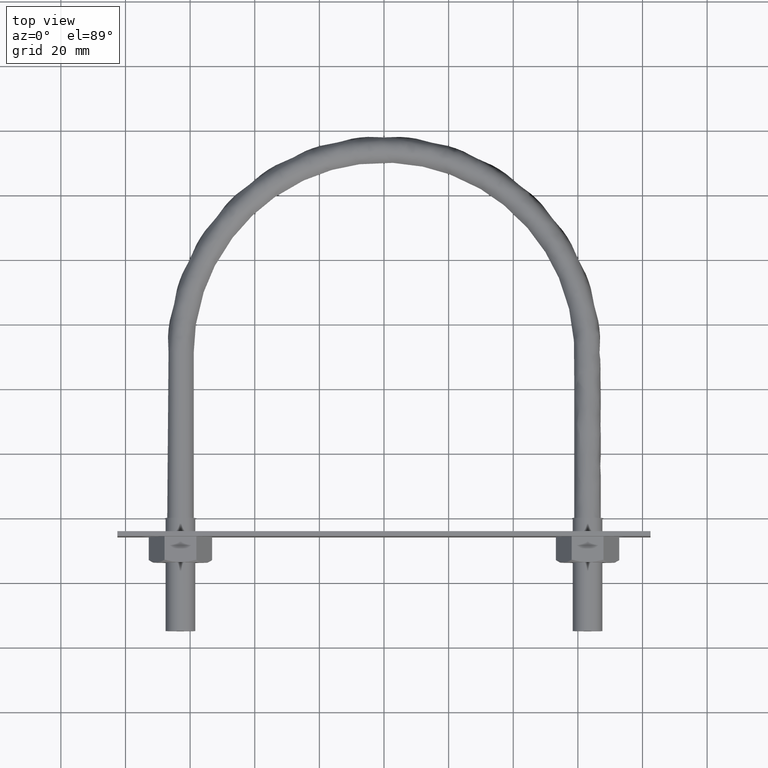
[diagram: clean part render]
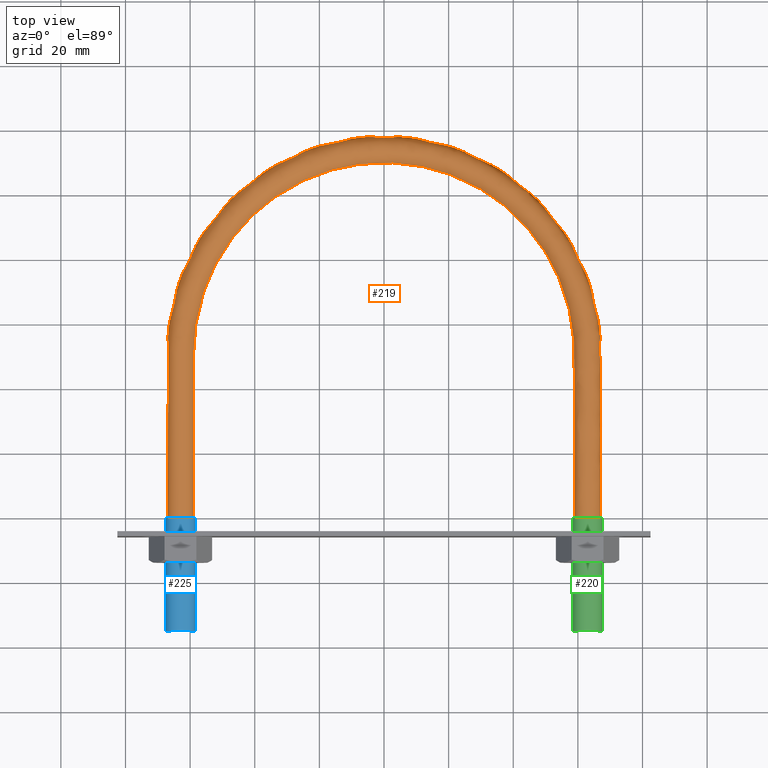
[diagram: same view with three faces highlighted in distinct colors, each labeled with its STEP entity id]
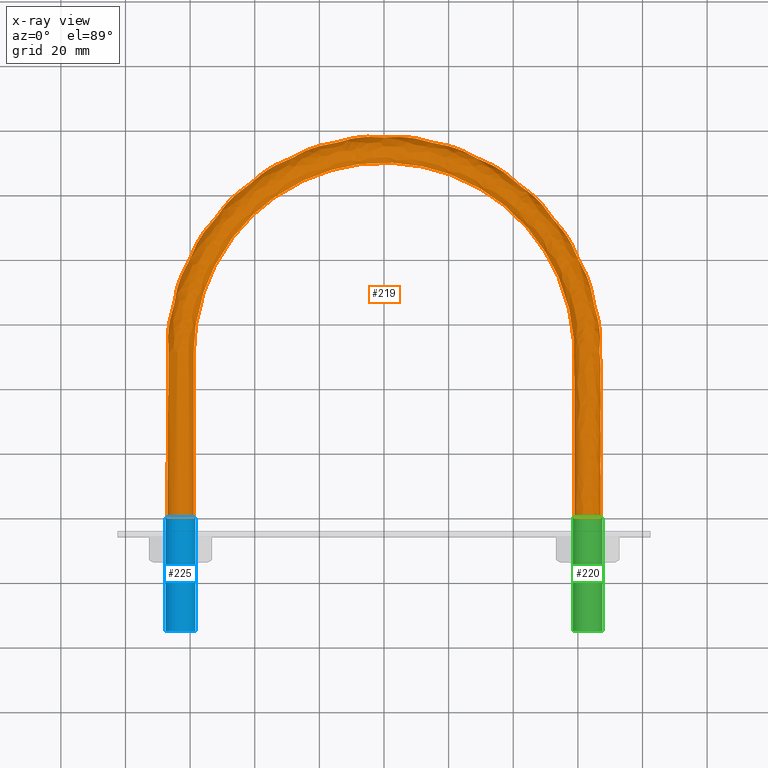
[diagram: x-ray of the same camera — body ghosted, the three highlighted faces saturated]
A machine part, top view with three faces highlighted in distinct colors.
The next image is the same camera in x-ray (body ghosted, the three faces saturated) — at least one of them is partly hidden behind the body in this view.
Their STEP definitions:

[orange] entity #219 — the highlighted face is a freeform B-spline surface patch.
#219 = ADVANCED_FACE( '', ( #291, #292 ), #293, .F. );
#291 = FACE_OUTER_BOUND( '', #452, .T. );
#292 = FACE_OUTER_BOUND( '', #453, .T. );
#293 = B_SPLINE_SURFACE_WITH_KNOTS( '', 3, 3, ( ( #454, #455, #456, #457, #458, #459, #460, #461, #462, #463, #464, #465, #466, #467, #468, #469 ), ( #470, #471, #472, #473, #474, #475, #476, #477, #478, #479, #480, #481, #482, #483, #484, #485 ), ( #486, #487, #488, #489, #490, #491, #492, #493, #494, #495, #496, #497, #498, #499, #500, #501 ), ( #502, #503, #504, #505, #506, #507, #508, #509, #510, #511, #512, #513, #514, #515, #516, #517 ), ( #518, #519, #520, #521, #522, #523, #524, #525, #526, #527, #528, #529, #530, #531, #532, #533 ), ( #534, #535, #536, #537, #538, #539, #540, #541, #542, #543, #544, #545, #546, #547, #548, #549 ), ( #550, #551, #552, #553, #554, #555, #556, #557, #558, #559, #560, #561, #562, #563, #564, #565 ), ( #566, #567, #568, #569, #570, #571, #572, #573, #574, #575, #576, #577, #578, #579, #580, #581 ), ( #582, #583, #584, #585, #586, #587, #588, #589, #590, #591, #592, #593, #594, #595, #596, #597 ), ( #598, #599, #600, #601, #602, #603, #604, #605, #606, #607, #608, #609, #610, #611, #612, #613 ) ), .UNSPECIFIED., .T., .F., .F., ( 2, 1, 1, 1, 1, 1, 1, 1, 1, 1, 1, 2 ), ( 4, 3, 1, 1, 1, 1, 1, 1, 3, 4 ), ( -0.285714285714286, -0.142857142857143, 0.000000000000000, 0.142857142857143, 0.285714285714286, 0.428571428571429, 0.571428571428571, 0.714285714285714, 0.857142857142857, 1.00000000000000, 1.14285714285714, 1.28571428571429 ), ( 0.000000000000000, 1.00000000000000, 2.00000000000000, 3.00000000000000, 4.00000000000000, 5.00000000000000, 6.00000000000000, 7.00000000000000, 8.00000000000000, 9.00000000000000 ), .UNSPECIFIED. );
#452 = EDGE_LOOP( '', ( #772 ) );
#453 = EDGE_LOOP( '', ( #773 ) );
#454 = CARTESIAN_POINT( '', ( -60.0768231851220, -2.60608028136415E-015, -3.66554778583225 ) );
#455 = CARTESIAN_POINT( '', ( -60.0768231851219, 17.0333333333333, -3.66554778583225 ) );
#456 = CARTESIAN_POINT( '', ( -60.0768231851220, 34.0666666666667, -3.66554778583225 ) );
#457 = CARTESIAN_POINT( '', ( -60.0768231851220, 51.1000000000000, -3.66554778583225 ) );
#458 = CARTESIAN_POINT( '', ( -60.0768231851219, 60.0778048200454, -3.66554778583225 ) );
#459 = CARTESIAN_POINT( '', ( -55.9751067698398, 78.0597089871846, -3.66554778583225 ) );
#460 = CARTESIAN_POINT( '', ( -38.7359757615163, 99.6724513819768, -3.66554778583225 ) );
#461 = CARTESIAN_POINT( '', ( -13.8247096880579, 111.670195881670, -3.66554778583225 ) );
#462 = CARTESIAN_POINT( '', ( 13.8247096880580, 111.670195881670, -3.66554778583225 ) );
#463 = CARTESIAN_POINT( '', ( 38.7359757615163, 99.6724513819769, -3.66554778583225 ) );
#464 = CARTESIAN_POINT( '', ( 55.9751067698399, 78.0597089871845, -3.66554778583225 ) );
#465 = CARTESIAN_POINT( '', ( 60.0768231851220, 60.0778048200453, -3.66554778583225 ) );
#466 = CARTESIAN_POINT( '', ( 60.0768231851220, 51.1000000000000, -3.66554778583225 ) );
#467 = CARTESIAN_POINT( '', ( 60.0768231851219, 34.0666666666666, -3.66554778583225 ) );
#468 = CARTESIAN_POINT( '', ( 60.0768231851219, 17.0333333333333, -3.66554778583225 ) );
#469 = CARTESIAN_POINT( '', ( 60.0768231851219, -5.69436553203405E-016, -3.66554778583225 ) );
#470 = CARTESIAN_POINT( '', ( -58.3115884074390, -3.81985017048487E-015, 0.000000000000000 ) );
#471 = CARTESIAN_POINT( '', ( -58.3115884074390, 17.0333333333333, 0.000000000000000 ) );
#472 = CARTESIAN_POINT( '', ( -58.3115884074390, 34.0666666666667, 0.000000000000000 ) );
#473 = CARTESIAN_POINT( '', ( -58.3115884074390, 51.1000000000000, 0.000000000000000 ) );
#474 = CARTESIAN_POINT( '', ( -58.3115884074390, 59.8092026075302, 0.000000000000000 ) );
#475 = CARTESIAN_POINT( '', ( -54.3303925536742, 77.2697809695614, 0.000000000000000 ) );
#476 = CARTESIAN_POINT( '', ( -37.5977982092344, 98.2446627678621, 0.000000000000000 ) );
#477 = CARTESIAN_POINT( '', ( -13.4184988227208, 109.890581616912, 0.000000000000000 ) );
#478 = CARTESIAN_POINT( '', ( 13.4184988227209, 109.890581616912, 0.000000000000000 ) );
#479 = CARTESIAN_POINT( '', ( 37.5977982092344, 98.2446627678621, 0.000000000000000 ) );
#480 = CARTESIAN_POINT( '', ( 54.3303925536743, 77.2697809695613, 0.000000000000000 ) );
#481 = CARTESIAN_POINT( '', ( 58.3115884074390, 59.8092026075302, 0.000000000000000 ) );
#482 = CARTESIAN_POINT( '', ( 58.3115884074390, 51.1000000000000, 0.000000000000000 ) );
#483 = CARTESIAN_POINT( '', ( 58.3115884074390, 34.0666666666666, 0.000000000000000 ) );
#484 = CARTESIAN_POINT( '', ( 58.3115884074390, 17.0333333333333, 0.000000000000000 ) );
#485 = CARTESIAN_POINT( '', ( 58.3115884074390, -1.27328339016162E-015, 0.000000000000000 ) );
#486 = CARTESIAN_POINT( '', ( -60.0768231851220, -2.15719497048718E-015, 3.66554778583225 ) );
#487 = CARTESIAN_POINT( '', ( -60.0768231851219, 17.0333333333333, 3.66554778583225 ) );
#488 = CARTESIAN_POINT( '', ( -60.0768231851220, 34.0666666666667, 3.66554778583225 ) );
#489 = CARTESIAN_POINT( '', ( -60.0768231851220, 51.1000000000000, 3.66554778583225 ) );
#490 = CARTESIAN_POINT( '', ( -60.0768231851219, 60.0778048200454, 3.66554778583225 ) );
#491 = CARTESIAN_POINT( '', ( -55.9751067698398, 78.0597089871846, 3.66554778583225 ) );
#492 = CARTESIAN_POINT( '', ( -38.7359757615163, 99.6724513819768, 3.66554778583225 ) );
#493 = CARTESIAN_POINT( '', ( -13.8247096880579, 111.670195881670, 3.66554778583225 ) );
#494 = CARTESIAN_POINT( '', ( 13.8247096880580, 111.670195881670, 3.66554778583225 ) );
#495 = CARTESIAN_POINT( '', ( 38.7359757615163, 99.6724513819769, 3.66554778583225 ) );
#496 = CARTESIAN_POINT( '', ( 55.9751067698399, 78.0597089871845, 3.66554778583225 ) );
#497 = CARTESIAN_POINT( '', ( 60.0768231851220, 60.0778048200453, 3.66554778583225 ) );
#498 = CARTESIAN_POINT( '', ( 60.0768231851220, 51.1000000000000, 3.66554778583225 ) );
#499 = CARTESIAN_POINT( '', ( 60.0768231851219, 34.0666666666666, 3.66554778583225 ) );
#500 = CARTESIAN_POINT( '', ( 60.0768231851219, 17.0333333333333, 3.66554778583225 ) );
#501 = CARTESIAN_POINT( '', ( 60.0768231851219, -1.01832186408038E-015, 3.66554778583225 ) );
#502 = CARTESIAN_POINT( '', ( -64.0432697263483, 1.12987204104545E-015, 4.57086332538454 ) );
#503 = CARTESIAN_POINT( '', ( -64.0432697263483, 17.0333333333333, 4.57086332538454 ) );
#504 = CARTESIAN_POINT( '', ( -64.0432697263483, 34.0666666666667, 4.57086332538453 ) );
#505 = CARTESIAN_POINT( '', ( -64.0432697263483, 51.1000000000000, 4.57086332538453 ) );
#506 = CARTESIAN_POINT( '', ( -64.0432697263483, 60.6813485130802, 4.57086332538453 ) );
#507 = CARTESIAN_POINT( '', ( -59.6707460675081, 79.8346611311888, 4.57086332538454 ) );
#508 = CARTESIAN_POINT( '', ( -41.2934375069027, 102.880663276313, 4.57086332538453 ) );
#509 = CARTESIAN_POINT( '', ( -14.7374572172787, 115.668952837065, 4.57086332538454 ) );
#510 = CARTESIAN_POINT( '', ( 14.7374572172788, 115.668952837065, 4.57086332538454 ) );
#511 = CARTESIAN_POINT( '', ( 41.2934375069027, 102.880663276313, 4.57086332538453 ) );
#512 = CARTESIAN_POINT( '', ( 59.6707460675081, 79.8346611311887, 4.57086332538454 ) );
#513 = CARTESIAN_POINT( '', ( 64.0432697263483, 60.6813485130802, 4.57086332538453 ) );
#514 = CARTESIAN_POINT( '', ( 64.0432697263483, 51.1000000000000, 4.57086332538453 ) );
#515 = CARTESIAN_POINT( '', ( 64.0432697263483, 34.0666666666666, 4.57086332538453 ) );
#516 = CARTESIAN_POINT( '', ( 64.0432697263483, 17.0333333333333, 4.57086332538454 ) );
#517 = CARTESIAN_POINT( '', ( 64.0432697263483, 3.45679563384110E-018, 4.57086332538454 ) );
#518 = CARTESIAN_POINT( '', ( -67.2241128848102, 3.56612236048147E-015, 2.03422555230246 ) );
#519 = CARTESIAN_POINT( '', ( -67.2241128848102, 17.0333333333333, 2.03422555230246 ) );
#520 = CARTESIAN_POINT( '', ( -67.2241128848102, 34.0666666666667, 2.03422555230246 ) );
#521 = CARTESIAN_POINT( '', ( -67.2241128848102, 51.1000000000000, 2.03422555230246 ) );
#522 = CARTESIAN_POINT( '', ( -67.2241128848102, 61.1653529757319, 2.03422555230246 ) );
#523 = CARTESIAN_POINT( '', ( -62.6344186782316, 81.2580622347135, 2.03422555230247 ) );
#524 = CARTESIAN_POINT( '', ( -43.3443625884054, 105.453449458839, 2.03422555230246 ) );
#525 = CARTESIAN_POINT( '', ( -15.4694239042235, 118.875706935908, 2.03422555230246 ) );
#526 = CARTESIAN_POINT( '', ( 15.4694239042236, 118.875706935908, 2.03422555230247 ) );
#527 = CARTESIAN_POINT( '', ( 43.3443625884054, 105.453449458839, 2.03422555230246 ) );
#528 = CARTESIAN_POINT( '', ( 62.6344186782316, 81.2580622347134, 2.03422555230246 ) );
#529 = CARTESIAN_POINT( '', ( 67.2241128848102, 61.1653529757318, 2.03422555230246 ) );
#530 = CARTESIAN_POINT( '', ( 67.2241128848102, 51.1000000000000, 2.03422555230246 ) );
#531 = CARTESIAN_POINT( '', ( 67.2241128848102, 34.0666666666666, 2.03422555230246 ) );
#532 = CARTESIAN_POINT( '', ( 67.2241128848102, 17.0333333333333, 2.03422555230246 ) );
#533 = CARTESIAN_POINT( '', ( 67.2241128848102, 1.02263241772999E-015, 2.03422555230246 ) );
#534 = CARTESIAN_POINT( '', ( -67.2241128848102, 3.31700980683573E-015, -2.03422555230246 ) );
#535 = CARTESIAN_POINT( '', ( -67.2241128848102, 17.0333333333333, -2.03422555230246 ) );
#536 = CARTESIAN_POINT( '', ( -67.2241128848102, 34.0666666666667, -2.03422555230246 ) );
#537 = CARTESIAN_POINT( '', ( -67.2241128848102, 51.1000000000000, -2.03422555230246 ) );
#538 = CARTESIAN_POINT( '', ( -67.2241128848102, 61.1653529757319, -2.03422555230246 ) );
#539 = CARTESIAN_POINT( '', ( -62.6344186782316, 81.2580622347135, -2.03422555230246 ) );
#540 = CARTESIAN_POINT( '', ( -43.3443625884054, 105.453449458839, -2.03422555230246 ) );
#541 = CARTESIAN_POINT( '', ( -15.4694239042235, 118.875706935908, -2.03422555230246 ) );
#542 = CARTESIAN_POINT( '', ( 15.4694239042236, 118.875706935908, -2.03422555230246 ) );
#543 = CARTESIAN_POINT( '', ( 43.3443625884054, 105.453449458839, -2.03422555230246 ) );
#544 = CARTESIAN_POINT( '', ( 62.6344186782316, 81.2580622347134, -2.03422555230246 ) );
#545 = CARTESIAN_POINT( '', ( 67.2241128848102, 61.1653529757318, -2.03422555230246 ) );
#546 = CARTESIAN_POINT( '', ( 67.2241128848102, 51.1000000000000, -2.03422555230246 ) );
#547 = CARTESIAN_POINT( '', ( 67.2241128848102, 34.0666666666666, -2.03422555230246 ) );
#548 = CARTESIAN_POINT( '', ( 67.2241128848102, 17.0333333333333, -2.03422555230246 ) );
#549 = CARTESIAN_POINT( '', ( 67.2241128848102, 1.27174497137573E-015, -2.03422555230246 ) );
#550 = CARTESIAN_POINT( '', ( -64.0432697263483, 5.70121213973487E-016, -4.57086332538454 ) );
#551 = CARTESIAN_POINT( '', ( -64.0432697263483, 17.0333333333333, -4.57086332538454 ) );
#552 = CARTESIAN_POINT( '', ( -64.0432697263483, 34.0666666666667, -4.57086332538454 ) );
#553 = CARTESIAN_POINT( '', ( -64.0432697263483, 51.1000000000000, -4.57086332538454 ) );
#554 = CARTESIAN_POINT( '', ( -64.0432697263482, 60.6813485130802, -4.57086332538454 ) );
#555 = CARTESIAN_POINT( '', ( -59.6707460675081, 79.8346611311888, -4.57086332538454 ) );
#556 = CARTESIAN_POINT( '', ( -41.2934375069027, 102.880663276313, -4.57086332538454 ) );
#557 = CARTESIAN_POINT( '', ( -14.7374572172787, 115.668952837065, -4.57086332538454 ) );
#558 = CARTESIAN_POINT( '', ( 14.7374572172788, 115.668952837065, -4.57086332538454 ) );
#559 = CARTESIAN_POINT( '', ( 41.2934375069027, 102.880663276313, -4.57086332538453 ) );
#560 = CARTESIAN_POINT( '', ( 59.6707460675082, 79.8346611311887, -4.57086332538454 ) );
#561 = CARTESIAN_POINT( '', ( 64.0432697263483, 60.6813485130802, -4.57086332538454 ) );
#562 = CARTESIAN_POINT( '', ( 64.0432697263483, 51.1000000000000, -4.57086332538454 ) );
#563 = CARTESIAN_POINT( '', ( 64.0432697263482, 34.0666666666666, -4.57086332538454 ) );
#564 = CARTESIAN_POINT( '', ( 64.0432697263482, 17.0333333333333, -4.57086332538454 ) );
#565 = CARTESIAN_POINT( '', ( 64.0432697263482, 5.63207622705797E-016, -4.57086332538454 ) );
#566 = CARTESIAN_POINT( '', ( -60.0768231851220, -2.60608028136415E-015, -3.66554778583225 ) );
#567 = CARTESIAN_POINT( '', ( -60.0768231851219, 17.0333333333333, -3.66554778583225 ) );
#568 = CARTESIAN_POINT( '', ( -60.0768231851220, 34.0666666666667, -3.66554778583225 ) );
#569 = CARTESIAN_POINT( '', ( -60.0768231851220, 51.1000000000000, -3.66554778583225 ) );
#570 = CARTESIAN_POINT( '', ( -60.0768231851219, 60.0778048200454, -3.66554778583225 ) );
#571 = CARTESIAN_POINT( '', ( -55.9751067698398, 78.0597089871846, -3.66554778583225 ) );
#572 = CARTESIAN_POINT( '', ( -38.7359757615163, 99.6724513819768, -3.66554778583225 ) );
#573 = CARTESIAN_POINT( '', ( -13.8247096880579, 111.670195881670, -3.66554778583225 ) );
#574 = CARTESIAN_POINT( '', ( 13.8247096880580, 111.670195881670, -3.66554778583225 ) );
#575 = CARTESIAN_POINT( '', ( 38.7359757615163, 99.6724513819769, -3.66554778583225 ) );
#576 = CARTESIAN_POINT( '', ( 55.9751067698399, 78.0597089871845, -3.66554778583225 ) );
#577 = CARTESIAN_POINT( '', ( 60.0768231851220, 60.0778048200453, -3.66554778583225 ) );
#578 = CARTESIAN_POINT( '', ( 60.0768231851220, 51.1000000000000, -3.66554778583225 ) );
#579 = CARTESIAN_POINT( '', ( 60.0768231851219, 34.0666666666666, -3.66554778583225 ) );
#580 = CARTESIAN_POINT( '', ( 60.0768231851219, 17.0333333333333, -3.66554778583225 ) );
#581 = CARTESIAN_POINT( '', ( 60.0768231851219, -5.69436553203405E-016, -3.66554778583225 ) );
#582 = CARTESIAN_POINT( '', ( -58.3115884074390, -3.81985017048487E-015, 0.000000000000000 ) );
#583 = CARTESIAN_POINT( '', ( -58.3115884074390, 17.0333333333333, 0.000000000000000 ) );
#584 = CARTESIAN_POINT( '', ( -58.3115884074390, 34.0666666666667, 0.000000000000000 ) );
#585 = CARTESIAN_POINT( '', ( -58.3115884074390, 51.1000000000000, 0.000000000000000 ) );
#586 = CARTESIAN_POINT( '', ( -58.3115884074390, 59.8092026075302, 0.000000000000000 ) );
#587 = CARTESIAN_POINT( '', ( -54.3303925536742, 77.2697809695614, 0.000000000000000 ) );
#588 = CARTESIAN_POINT( '', ( -37.5977982092344, 98.2446627678621, 0.000000000000000 ) );
#589 = CARTESIAN_POINT( '', ( -13.4184988227208, 109.890581616912, 0.000000000000000 ) );
#590 = CARTESIAN_POINT( '', ( 13.4184988227209, 109.890581616912, 0.000000000000000 ) );
#591 = CARTESIAN_POINT( '', ( 37.5977982092344, 98.2446627678621, 0.000000000000000 ) );
#592 = CARTESIAN_POINT( '', ( 54.3303925536743, 77.2697809695613, 0.000000000000000 ) );
#593 = CARTESIAN_POINT( '', ( 58.3115884074390, 59.8092026075302, 0.000000000000000 ) );
#594 = CARTESIAN_POINT( '', ( 58.3115884074390, 51.1000000000000, 0.000000000000000 ) );
#595 = CARTESIAN_POINT( '', ( 58.3115884074390, 34.0666666666666, 0.000000000000000 ) );
#596 = CARTESIAN_POINT( '', ( 58.3115884074390, 17.0333333333333, 0.000000000000000 ) );
#597 = CARTESIAN_POINT( '', ( 58.3115884074390, -1.27328339016162E-015, 0.000000000000000 ) );
#598 = CARTESIAN_POINT( '', ( -60.0768231851220, -2.15719497048718E-015, 3.66554778583225 ) );
#599 = CARTESIAN_POINT( '', ( -60.0768231851219, 17.0333333333333, 3.66554778583225 ) );
#600 = CARTESIAN_POINT( '', ( -60.0768231851220, 34.0666666666667, 3.66554778583225 ) );
#601 = CARTESIAN_POINT( '', ( -60.0768231851220, 51.1000000000000, 3.66554778583225 ) );
#602 = CARTESIAN_POINT( '', ( -60.0768231851219, 60.0778048200454, 3.66554778583225 ) );
#603 = CARTESIAN_POINT( '', ( -55.9751067698398, 78.0597089871846, 3.66554778583225 ) );
#604 = CARTESIAN_POINT( '', ( -38.7359757615163, 99.6724513819768, 3.66554778583225 ) );
#605 = CARTESIAN_POINT( '', ( -13.8247096880579, 111.670195881670, 3.66554778583225 ) );
#606 = CARTESIAN_POINT( '', ( 13.8247096880580, 111.670195881670, 3.66554778583225 ) );
#607 = CARTESIAN_POINT( '', ( 38.7359757615163, 99.6724513819769, 3.66554778583225 ) );
#608 = CARTESIAN_POINT( '', ( 55.9751067698399, 78.0597089871845, 3.66554778583225 ) );
#609 = CARTESIAN_POINT( '', ( 60.0768231851220, 60.0778048200453, 3.66554778583225 ) );
#610 = CARTESIAN_POINT( '', ( 60.0768231851220, 51.1000000000000, 3.66554778583225 ) );
#611 = CARTESIAN_POINT( '', ( 60.0768231851219, 34.0666666666666, 3.66554778583225 ) );
#612 = CARTESIAN_POINT( '', ( 60.0768231851219, 17.0333333333333, 3.66554778583225 ) );
#613 = CARTESIAN_POINT( '', ( 60.0768231851219, -1.01832186408038E-015, 3.66554778583225 ) );
#772 = ORIENTED_EDGE( '', *, *, #1298, .T. );
#773 = ORIENTED_EDGE( '', *, *, #1299, .T. );
#1298 = EDGE_CURVE( '', #1456, #1456, #1457, .F. );
#1299 = EDGE_CURVE( '', #1458, #1458, #1459, .T. );
#1456 = VERTEX_POINT( '', #1720 );
#1457 = B_SPLINE_CURVE_WITH_KNOTS( '', 3, ( #1721, #1722, #1723, #1724, #1725, #1726, #1727, #1728, #1729, #1730 ), .UNSPECIFIED., .T., .F., ( 4, 1, 1, 1, 1, 1, 1, 4 ), ( 0.000000000000000, 0.142857142857143, 0.285714285714286, 0.428571428571429, 0.571428571428571, 0.714285714285714, 0.857142857142857, 1.00000000000000 ), .UNSPECIFIED. );
#1458 = VERTEX_POINT( '', #1731 );
#1459 = B_SPLINE_CURVE_WITH_KNOTS( '', 3, ( #1732, #1733, #1734, #1735, #1736, #1737, #1738, #1739, #1740, #1741 ), .UNSPECIFIED., .T., .F., ( 4, 1, 1, 1, 1, 1, 1, 4 ), ( 0.000000000000000, 0.142857142857143, 0.285714285714286, 0.428571428571429, 0.571428571428571, 0.714285714285714, 0.857142857142857, 1.00000000000000 ), .UNSPECIFIED. );
#1720 = CARTESIAN_POINT( '', ( -58.9000000000000, -3.34044598896513E-015, 1.19262238973405E-015 ) );
#1721 = CARTESIAN_POINT( '', ( -58.9000000000000, -3.34044598896513E-015, 4.33680868994202E-016 ) );
#1722 = CARTESIAN_POINT( '', ( -58.9000000000000, -3.26563177048564E-015, 1.22184926194408 ) );
#1723 = CARTESIAN_POINT( '', ( -60.0768231851220, -2.15719497048718E-015, 3.66554778583225 ) );
#1724 = CARTESIAN_POINT( '', ( -64.0432697263483, 1.12987204104545E-015, 4.57086332538454 ) );
#1725 = CARTESIAN_POINT( '', ( -67.2241128848102, 3.56612236048147E-015, 2.03422555230246 ) );
#1726 = CARTESIAN_POINT( '', ( -67.2241128848102, 3.31700980683573E-015, -2.03422555230246 ) );
#1727 = CARTESIAN_POINT( '', ( -64.0432697263483, 5.70121213973487E-016, -4.57086332538454 ) );
#1728 = CARTESIAN_POINT( '', ( -60.0768231851220, -2.60608028136415E-015, -3.66554778583225 ) );
#1729 = CARTESIAN_POINT( '', ( -58.9000000000000, -3.41526020744463E-015, -1.22184926194408 ) );
#1730 = CARTESIAN_POINT( '', ( -58.9000000000000, -3.34044598896513E-015, 4.33680868994202E-016 ) );
#1731 = CARTESIAN_POINT( '', ( 58.9000000000000, -1.11348199632171E-015, 4.33680868994202E-016 ) );
#1732 = CARTESIAN_POINT( '', ( 58.9000000000000, -1.11348199632171E-015, 4.33680868994202E-016 ) );
#1733 = CARTESIAN_POINT( '', ( 58.9000000000000, -1.18829621480121E-015, 1.22184926194408 ) );
#1734 = CARTESIAN_POINT( '', ( 60.0768231851219, -1.01832186408038E-015, 3.66554778583225 ) );
#1735 = CARTESIAN_POINT( '', ( 64.0432697263483, 3.45679563384110E-018, 4.57086332538454 ) );
#1736 = CARTESIAN_POINT( '', ( 67.2241128848102, 1.02263241772999E-015, 2.03422555230246 ) );
#1737 = CARTESIAN_POINT( '', ( 67.2241128848102, 1.27174497137573E-015, -2.03422555230246 ) );
#1738 = CARTESIAN_POINT( '', ( 64.0432697263482, 5.63207622705797E-016, -4.57086332538454 ) );
#1739 = CARTESIAN_POINT( '', ( 60.0768231851219, -5.69436553203405E-016, -3.66554778583225 ) );
#1740 = CARTESIAN_POINT( '', ( 58.9000000000000, -1.03866777784222E-015, -1.22184926194408 ) );
#1741 = CARTESIAN_POINT( '', ( 58.9000000000000, -1.11348199632171E-015, 4.33680868994202E-016 ) );

[blue] entity #225 — the highlighted cylindrical surface (bore or boss wall) has radius 4.6 mm, axis along (0, 1, 0).
#225 = ADVANCED_FACE( '', ( #307, #308 ), #309, .T. );
#307 = FACE_OUTER_BOUND( '', #627, .T. );
#308 = FACE_OUTER_BOUND( '', #628, .T. );
#309 = CYLINDRICAL_SURFACE( '', #629, 4.60000000000001 );
#627 = EDGE_LOOP( '', ( #797 ) );
#628 = EDGE_LOOP( '', ( #798 ) );
#629 = AXIS2_PLACEMENT_3D( '', #799, #800, #801 );
#797 = ORIENTED_EDGE( '', *, *, #1303, .F. );
#798 = ORIENTED_EDGE( '', *, *, #1302, .T. );
#799 = CARTESIAN_POINT( '', ( -63.0000000000000, -100.076000000000, 0.000000000000000 ) );
#800 = DIRECTION( '', ( 6.12303176911189E-017, 1.00000000000000, 0.000000000000000 ) );
#801 = DIRECTION( '', ( 1.00000000000000, -6.12303176911189E-017, 0.000000000000000 ) );
#1302 = EDGE_CURVE( '', #1464, #1464, #1465, .T. );
#1303 = EDGE_CURVE( '', #1466, #1466, #1467, .T. );
#1464 = VERTEX_POINT( '', #1746 );
#1465 = CIRCLE( '', #1747, 4.60000000000001 );
#1466 = VERTEX_POINT( '', #1748 );
#1467 = CIRCLE( '', #1749, 4.60000000000001 );
#1746 = CARTESIAN_POINT( '', ( -58.4000000000000, -2.81659461379148E-016, 0.000000000000000 ) );
#1747 = AXIS2_PLACEMENT_3D( '', #2212, #2213, #2214 );
#1748 = CARTESIAN_POINT( '', ( -58.4000000000000, -35.0000000000000, 0.000000000000000 ) );
#1749 = AXIS2_PLACEMENT_3D( '', #2215, #2216, #2217 );
#2212 = CARTESIAN_POINT( '', ( -63.0000000000000, 0.000000000000000, 0.000000000000000 ) );
#2213 = DIRECTION( '', ( -6.12303176911189E-017, -1.00000000000000, 0.000000000000000 ) );
#2214 = DIRECTION( '', ( 1.00000000000000, -6.12303176911189E-017, 0.000000000000000 ) );
#2215 = CARTESIAN_POINT( '', ( -63.0000000000000, -35.0000000000000, 0.000000000000000 ) );
#2216 = DIRECTION( '', ( -6.12303176911189E-017, -1.00000000000000, 0.000000000000000 ) );
#2217 = DIRECTION( '', ( 1.00000000000000, -6.12303176911189E-017, 0.000000000000000 ) );

[green] entity #220 — the highlighted cylindrical surface (bore or boss wall) has radius 4.6 mm, axis along (0, 1, 0).
#220 = ADVANCED_FACE( '', ( #294, #295 ), #296, .T. );
#294 = FACE_OUTER_BOUND( '', #614, .T. );
#295 = FACE_OUTER_BOUND( '', #615, .T. );
#296 = CYLINDRICAL_SURFACE( '', #616, 4.60000000000001 );
#614 = EDGE_LOOP( '', ( #774 ) );
#615 = EDGE_LOOP( '', ( #775 ) );
#616 = AXIS2_PLACEMENT_3D( '', #776, #777, #778 );
#774 = ORIENTED_EDGE( '', *, *, #1300, .T. );
#775 = ORIENTED_EDGE( '', *, *, #1301, .F. );
#776 = CARTESIAN_POINT( '', ( 63.0000000000000, -100.076000000000, 0.000000000000000 ) );
#777 = DIRECTION( '', ( 6.12303176911189E-017, 1.00000000000000, 0.000000000000000 ) );
#778 = DIRECTION( '', ( 1.00000000000000, -6.12303176911189E-017, 0.000000000000000 ) );
#1300 = EDGE_CURVE( '', #1460, #1460, #1461, .T. );
#1301 = EDGE_CURVE( '', #1462, #1462, #1463, .T. );
#1460 = VERTEX_POINT( '', #1742 );
#1461 = CIRCLE( '', #1743, 4.60000000000000 );
#1462 = VERTEX_POINT( '', #1744 );
#1463 = CIRCLE( '', #1745, 4.60000000000000 );
#1742 = CARTESIAN_POINT( '', ( 67.6000000000000, -2.81659461379147E-016, 0.000000000000000 ) );
#1743 = AXIS2_PLACEMENT_3D( '', #2206, #2207, #2208 );
#1744 = CARTESIAN_POINT( '', ( 67.6000000000000, -35.0000000000000, 0.000000000000000 ) );
#1745 = AXIS2_PLACEMENT_3D( '', #2209, #2210, #2211 );
#2206 = CARTESIAN_POINT( '', ( 63.0000000000000, 0.000000000000000, 0.000000000000000 ) );
#2207 = DIRECTION( '', ( -6.12303176911189E-017, -1.00000000000000, 0.000000000000000 ) );
#2208 = DIRECTION( '', ( 1.00000000000000, -6.12303176911189E-017, 0.000000000000000 ) );
#2209 = CARTESIAN_POINT( '', ( 63.0000000000000, -35.0000000000000, 0.000000000000000 ) );
#2210 = DIRECTION( '', ( -6.12303176911189E-017, -1.00000000000000, 0.000000000000000 ) );
#2211 = DIRECTION( '', ( 1.00000000000000, -6.12303176911189E-017, 0.000000000000000 ) );